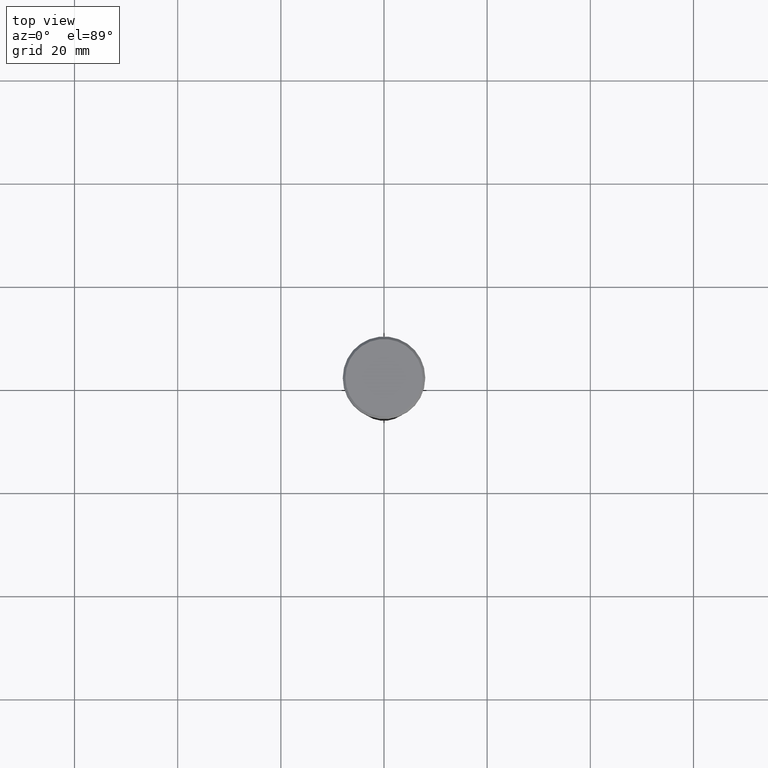
[diagram: clean part render]
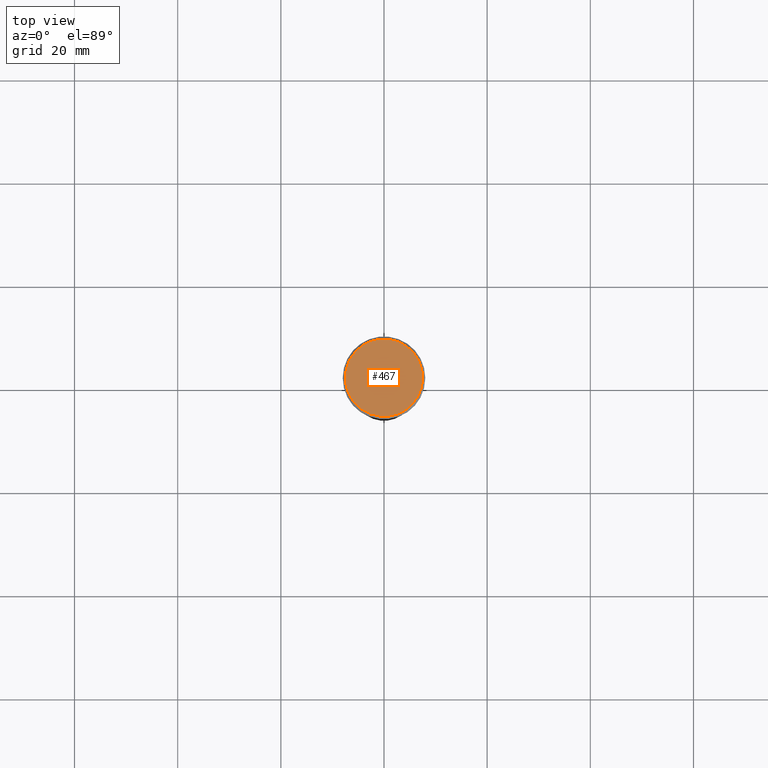
[diagram: same view with one face highlighted and labeled with its STEP entity id]
A machine part, top view. The second image highlights one B-rep face of the part: STEP entity #467.
In plain terms, the highlighted planar face has unit normal (0, -0, 1).
Its self-contained STEP definition (entity closure, byte-faithful):
#1 = EDGE_CURVE ( 'NONE', #560, #157, #570, .T. ) ;
#49 = DIRECTION ( 'NONE',  ( 1.000000000000000000, 0.000000000000000000, 0.000000000000000000 ) ) ;
#52 = CARTESIAN_POINT ( 'NONE',  ( 0.000000000000000000, 0.000000000000000000, 0.000000000000000000 ) ) ;
#108 = CARTESIAN_POINT ( 'NONE',  ( 0.000000000000000000, 0.000000000000000000, 0.000000000000000000 ) ) ;
#119 = DIRECTION ( 'NONE',  ( 1.000000000000000000, 0.000000000000000000, 0.000000000000000000 ) ) ;
#157 = VERTEX_POINT ( 'NONE', #309 ) ;
#168 = DIRECTION ( 'NONE',  ( -0.000000000000000000, -0.000000000000000000, 1.000000000000000000 ) ) ;
#195 = CIRCLE ( 'NONE', #443, 7.500000000000003553 ) ;
#200 = DIRECTION ( 'NONE',  ( 0.000000000000000000, -0.000000000000000000, 1.000000000000000000 ) ) ;
#209 = EDGE_LOOP ( 'NONE', ( #586, #437 ) ) ;
#248 = DIRECTION ( 'NONE',  ( 1.000000000000000000, 0.000000000000000000, 0.000000000000000000 ) ) ;
#257 = DIRECTION ( 'NONE',  ( -0.000000000000000000, -0.000000000000000000, 1.000000000000000000 ) ) ;
#293 = FACE_OUTER_BOUND ( 'NONE', #209, .T. ) ;
#309 = CARTESIAN_POINT ( 'NONE',  ( 7.500000000000003553, 9.491012693391989759E-16, 0.000000000000000000 ) ) ;
#370 = AXIS2_PLACEMENT_3D ( 'NONE', #520, #257, #119 ) ;
#403 = AXIS2_PLACEMENT_3D ( 'NONE', #52, #200, #248 ) ;
#437 = ORIENTED_EDGE ( 'NONE', *, *, #439, .T. ) ;
#439 = EDGE_CURVE ( 'NONE', #157, #560, #195, .T. ) ;
#443 = AXIS2_PLACEMENT_3D ( 'NONE', #108, #168, #49 ) ;
#467 = ADVANCED_FACE ( 'NONE', ( #293 ), #471, .T. ) ;
#471 = PLANE ( 'NONE',  #403 ) ;
#520 = CARTESIAN_POINT ( 'NONE',  ( 0.000000000000000000, 0.000000000000000000, 0.000000000000000000 ) ) ;
#530 = CARTESIAN_POINT ( 'NONE',  ( -7.500000000000003553, 0.000000000000000000, 0.000000000000000000 ) ) ;
#560 = VERTEX_POINT ( 'NONE', #530 ) ;
#570 = CIRCLE ( 'NONE', #370, 7.500000000000003553 ) ;
#586 = ORIENTED_EDGE ( 'NONE', *, *, #1, .T. ) ;